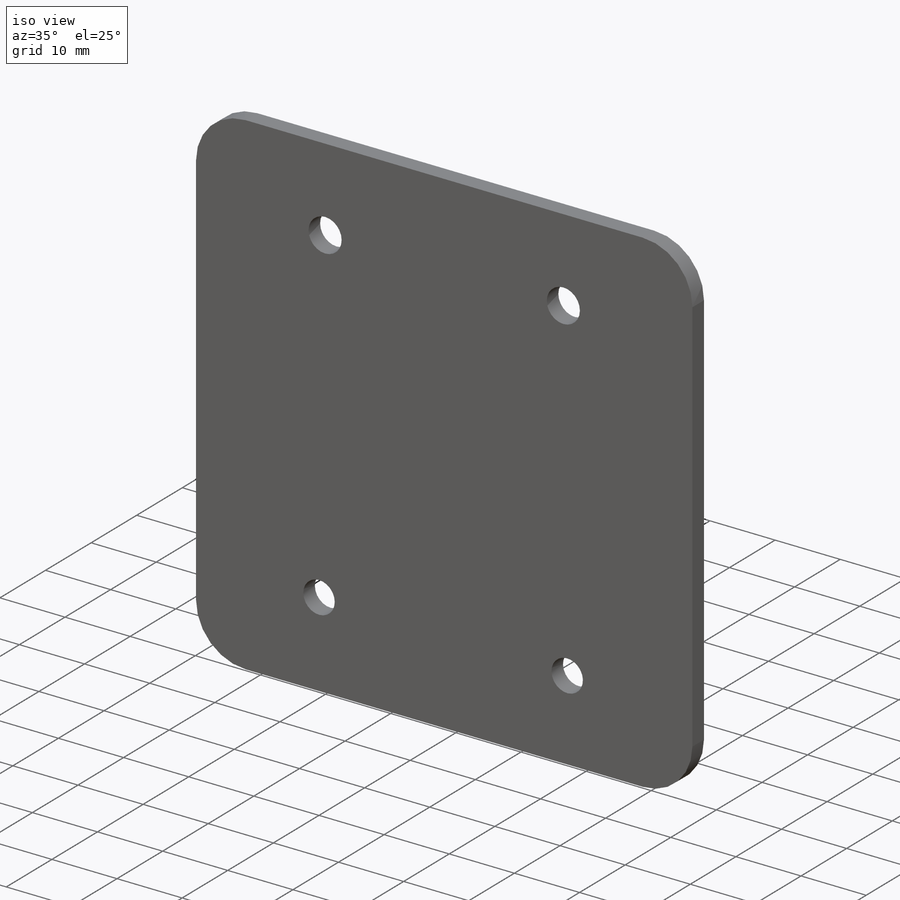
[diagram: iso view]
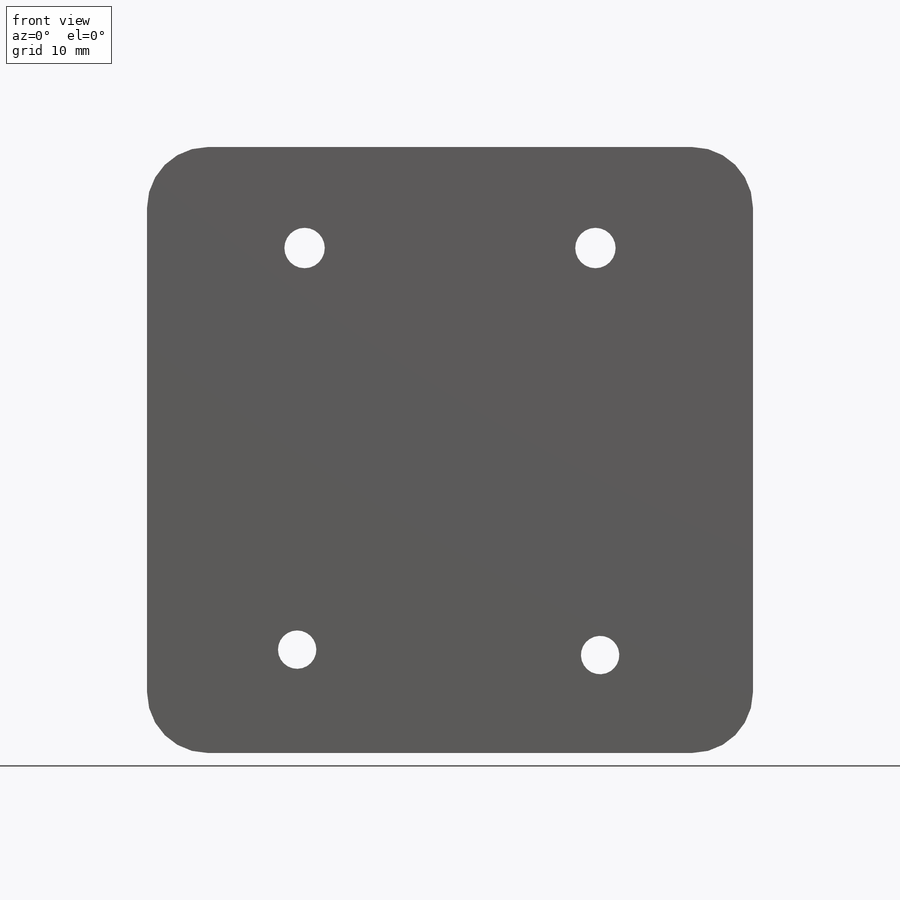
[diagram: front view]
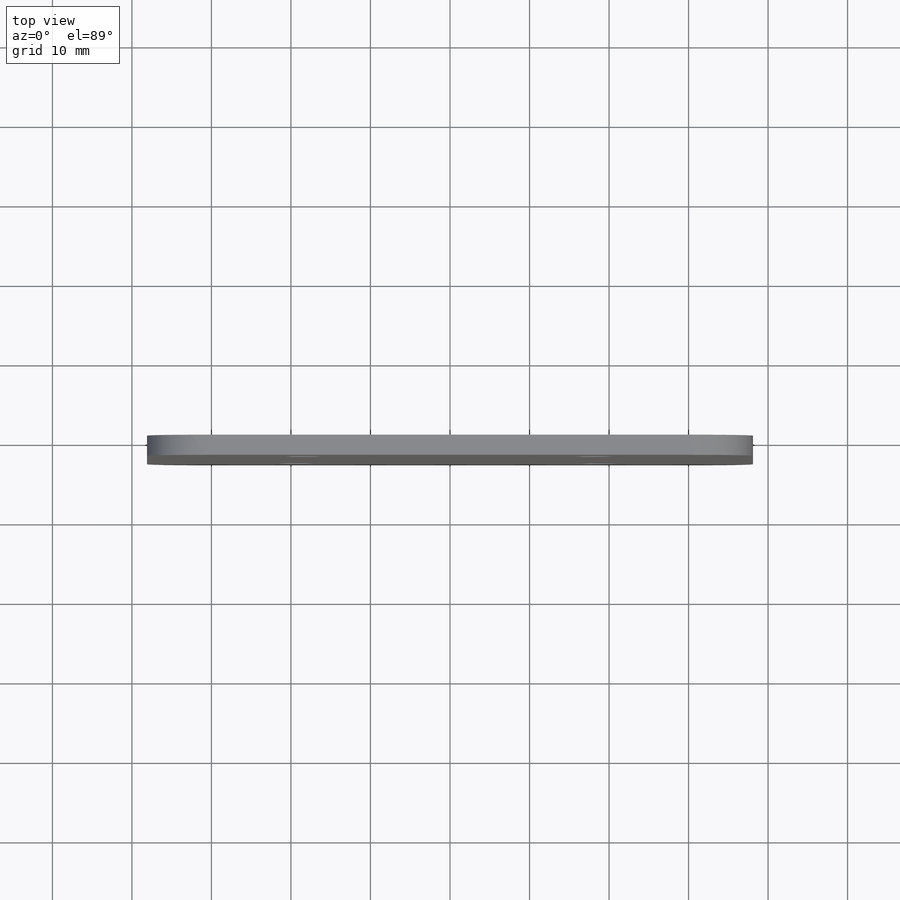
[diagram: top view]
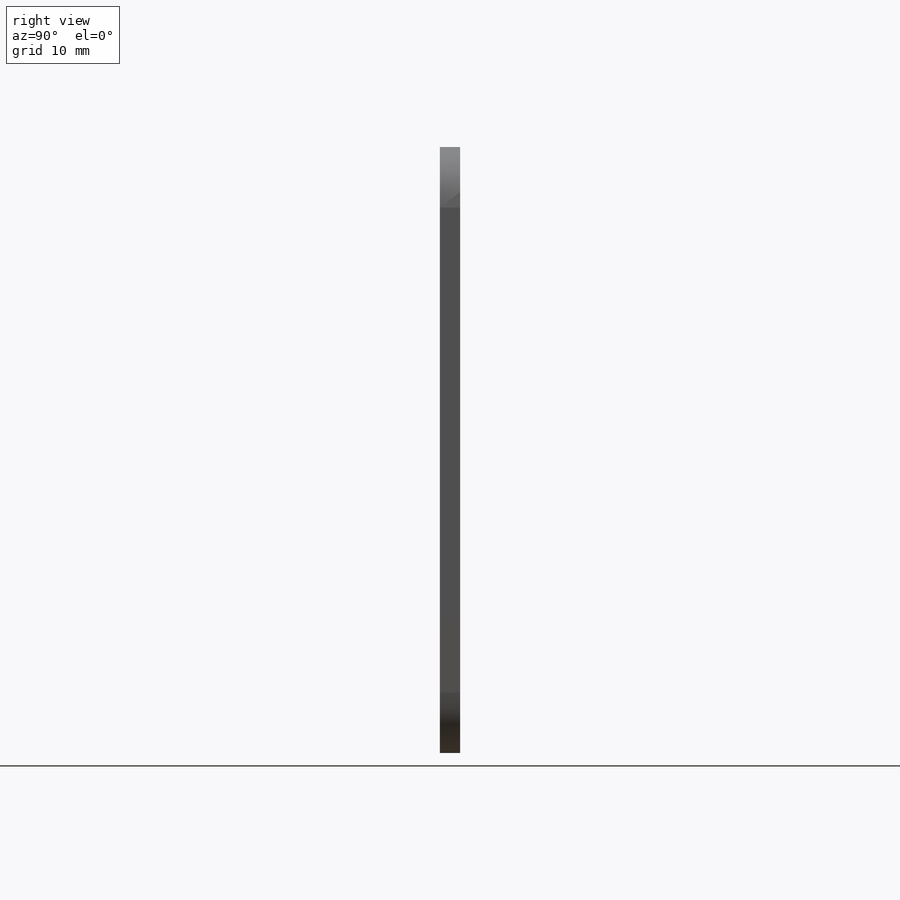
[diagram: right view]
SOLIDWORKS PART (.sldprt)
format: sldprt  version: not decoded by parser v0  size: 171,008 bytes
history: native  units: mm
features: fillet x4, material x1, sketch x1, extrude x1 + 1 further entry (+10 scaffold rows collapsed)
feature tree (18):
  scaffold x10  (default folders/planes/origin — collapsed)
  material  "Material <not specified>"
  "Annotations"  RD1=76.2mm
  sketch  "Sketch1"  dims[c1.D2=2.286mm c1.D1=76.2mm c2.D2=36.576mm]
  extrude  "Boss-Extrude1"  Depth=2.54mm
  fillet  "Fillet1"  Radius=7.62mm
  fillet  "Fillet2"  Radius=7.62mm
  fillet  "Fillet3"  Radius=7.62mm
  fillet  "Fillet4"  Radius=7.62mm
decode coverage: 6 of 6 modeling features carry decoded parameters; 1 rows unclassified (native names shown)
note: suppression state not decoded; provenance and decode notes live in map.json
